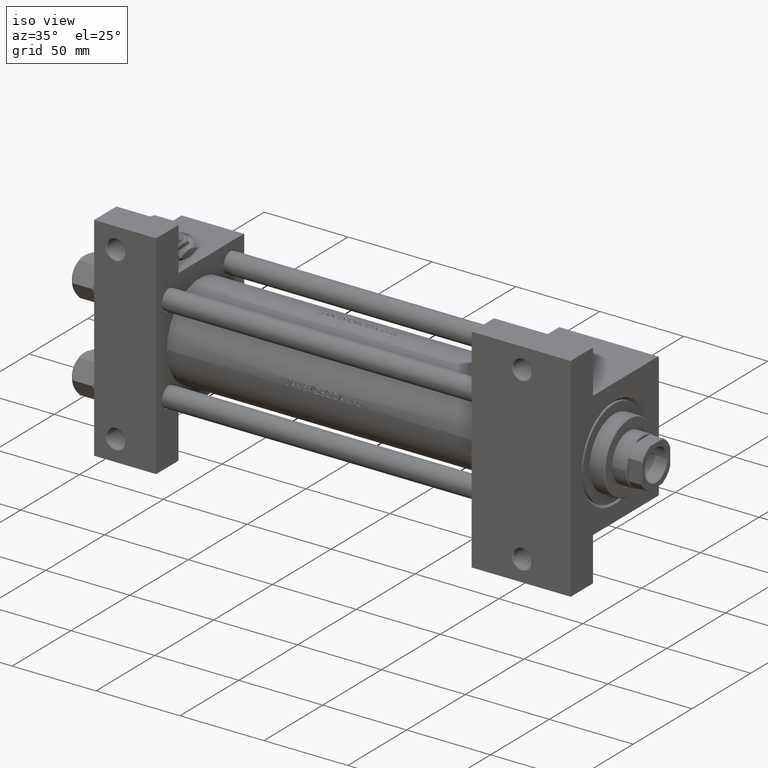
[diagram: clean part render]
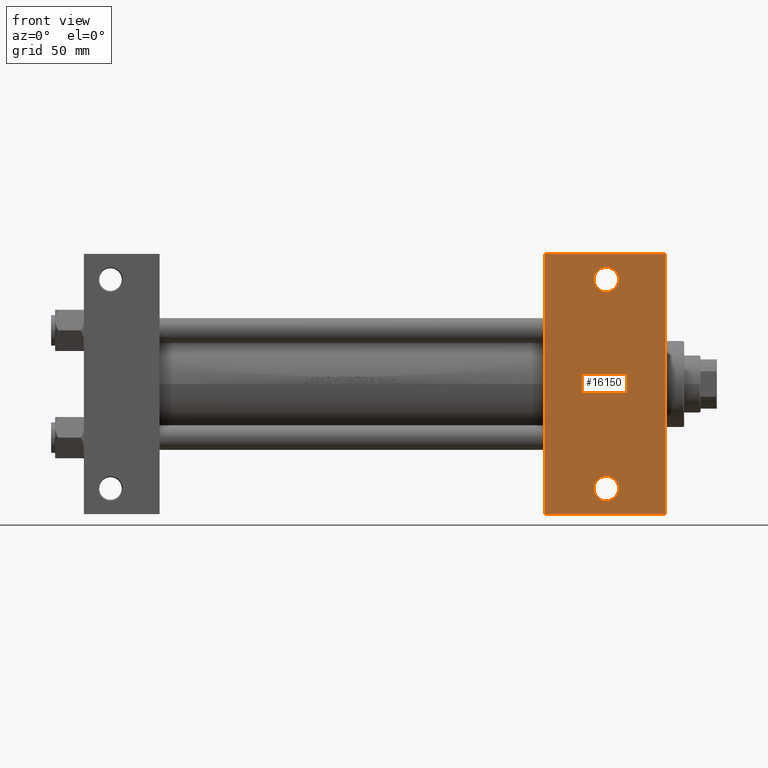
[diagram: tour spotlight — one face highlighted and labeled with its STEP entity id]
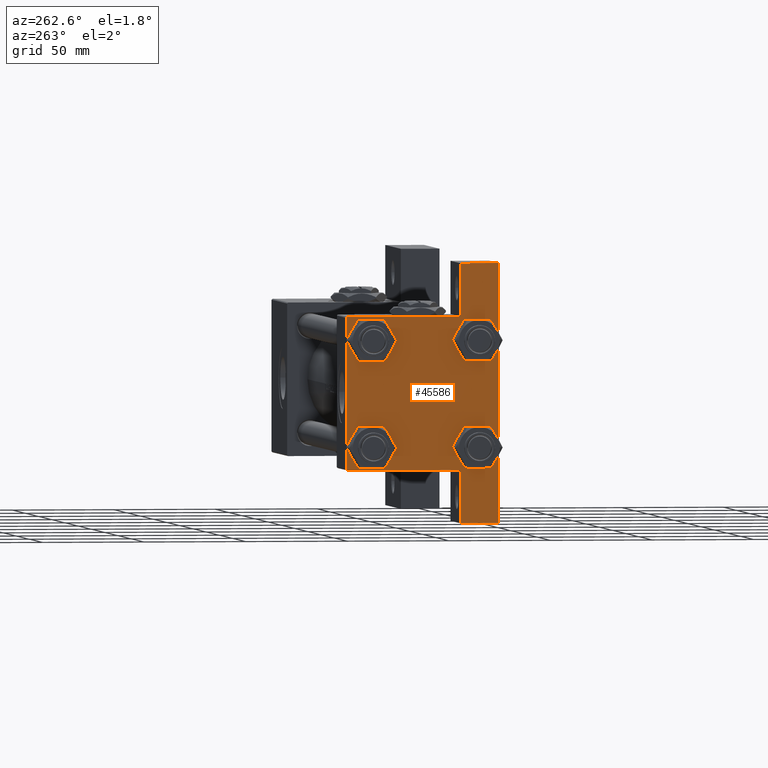
[diagram: tour spotlight — one face highlighted and labeled with its STEP entity id]
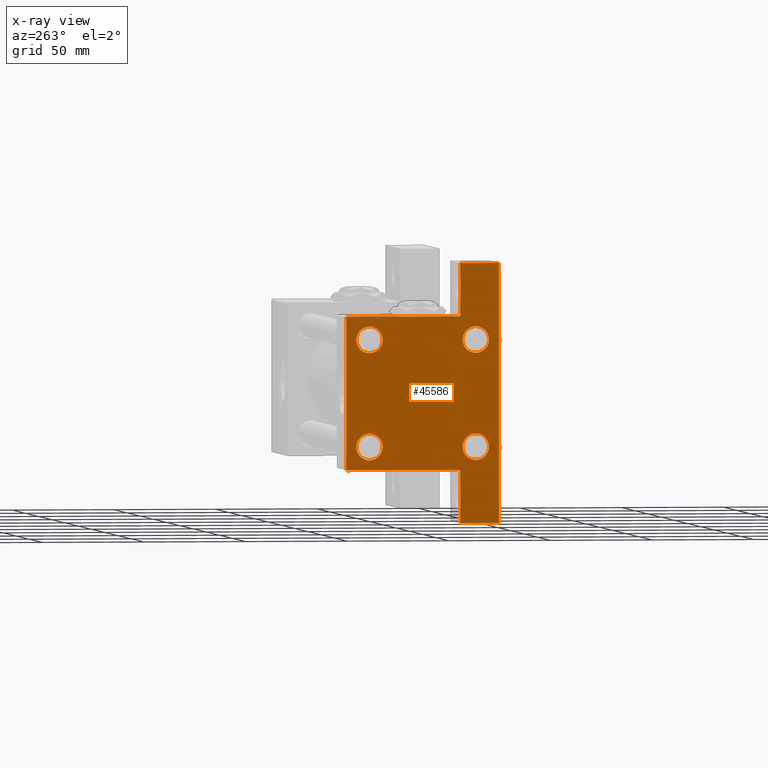
[diagram: x-ray of the same camera — body ghosted, this tour face saturated]
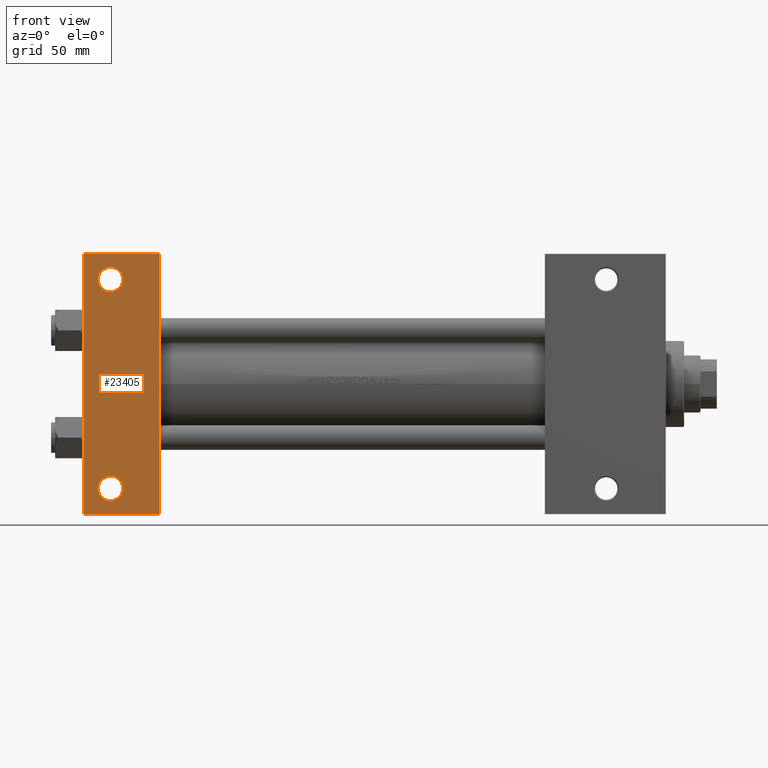
[diagram: tour spotlight — one face highlighted and labeled with its STEP entity id]
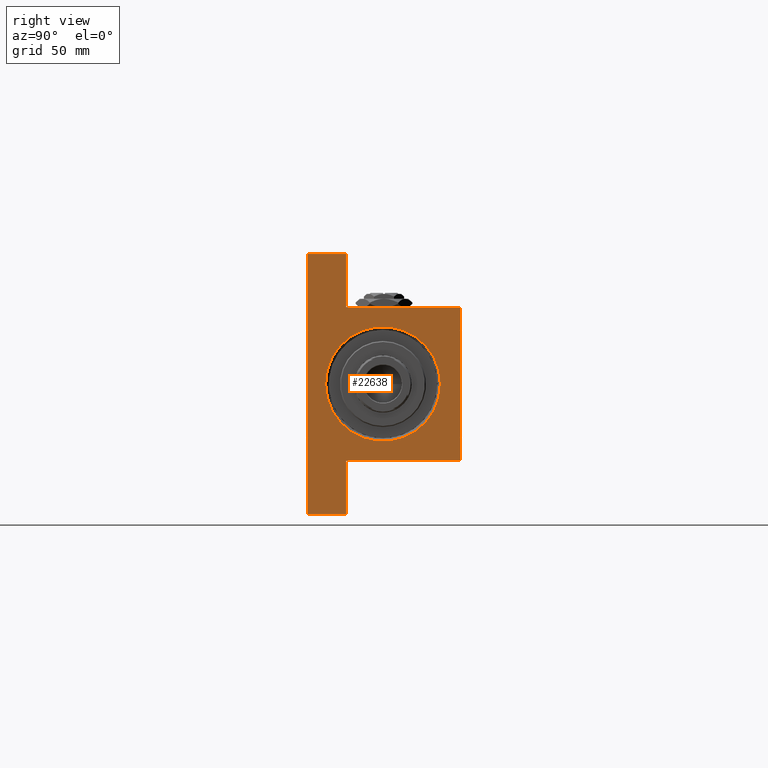
[diagram: tour spotlight — one face highlighted and labeled with its STEP entity id]
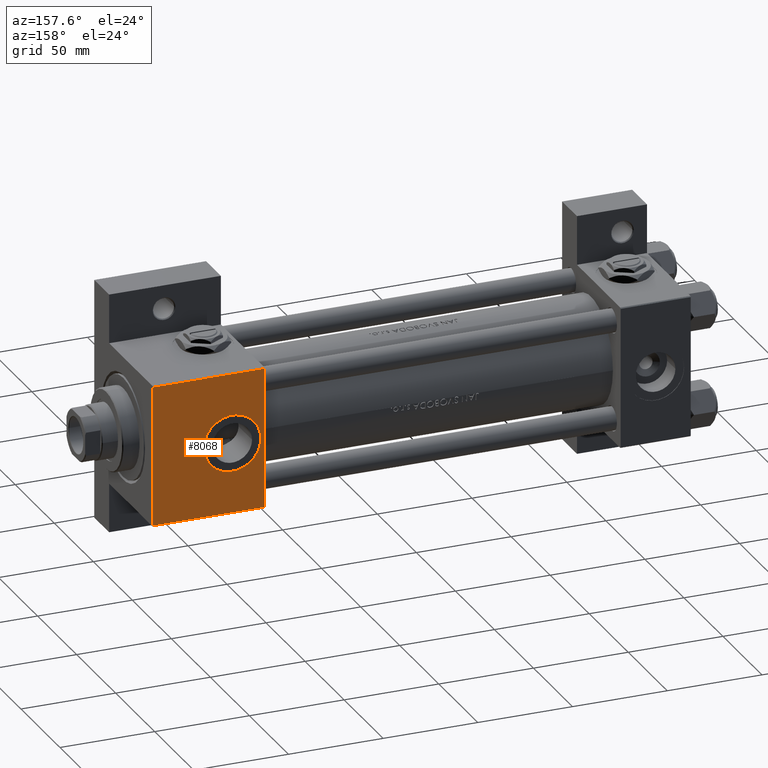
[diagram: tour spotlight — one face highlighted and labeled with its STEP entity id]
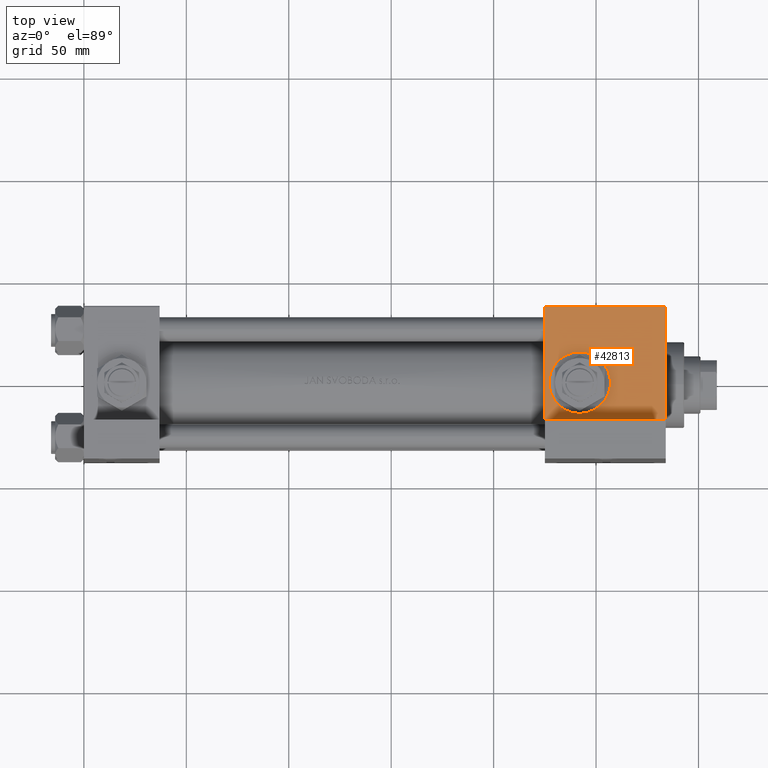
[diagram: tour spotlight — one face highlighted and labeled with its STEP entity id]
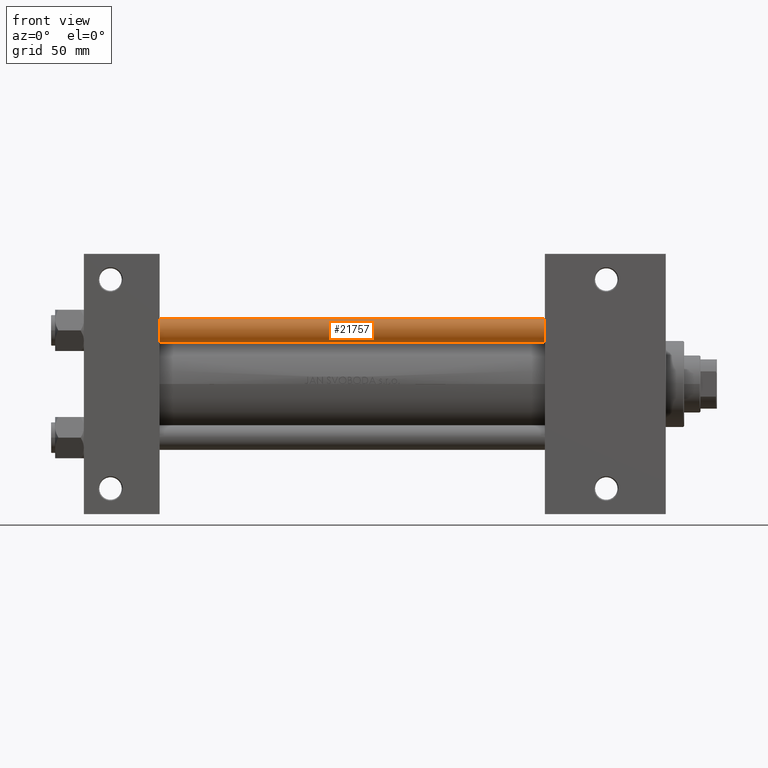
[diagram: tour spotlight — one face highlighted and labeled with its STEP entity id]
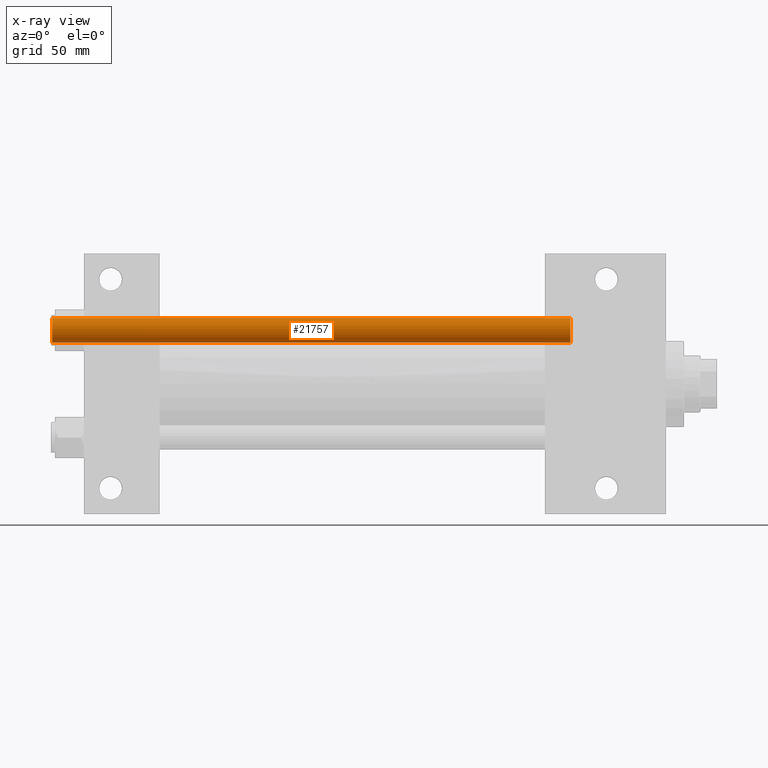
[diagram: x-ray of the same camera — body ghosted, this tour face saturated]
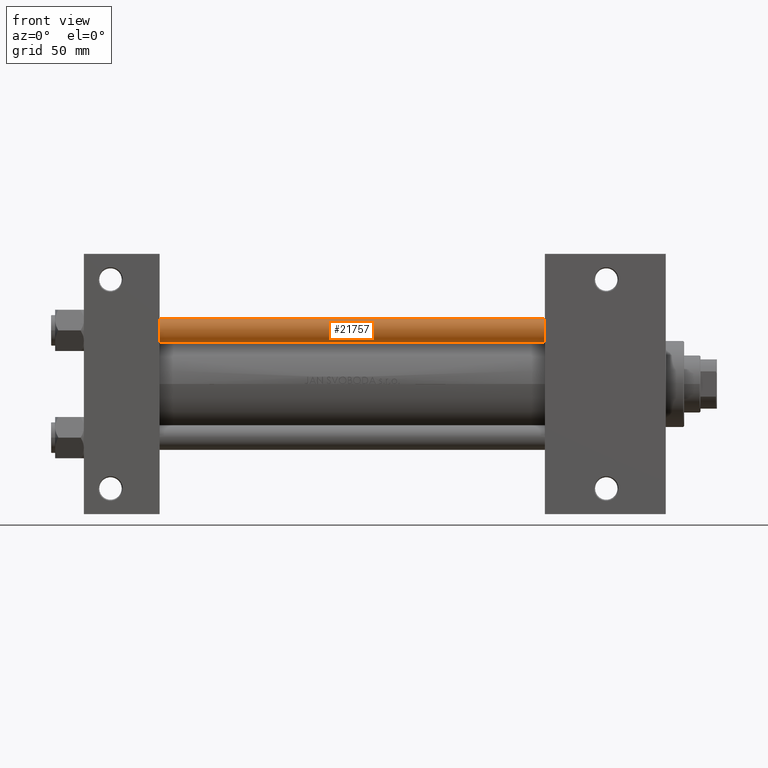
[diagram: tour spotlight — one face highlighted and labeled with its STEP entity id]
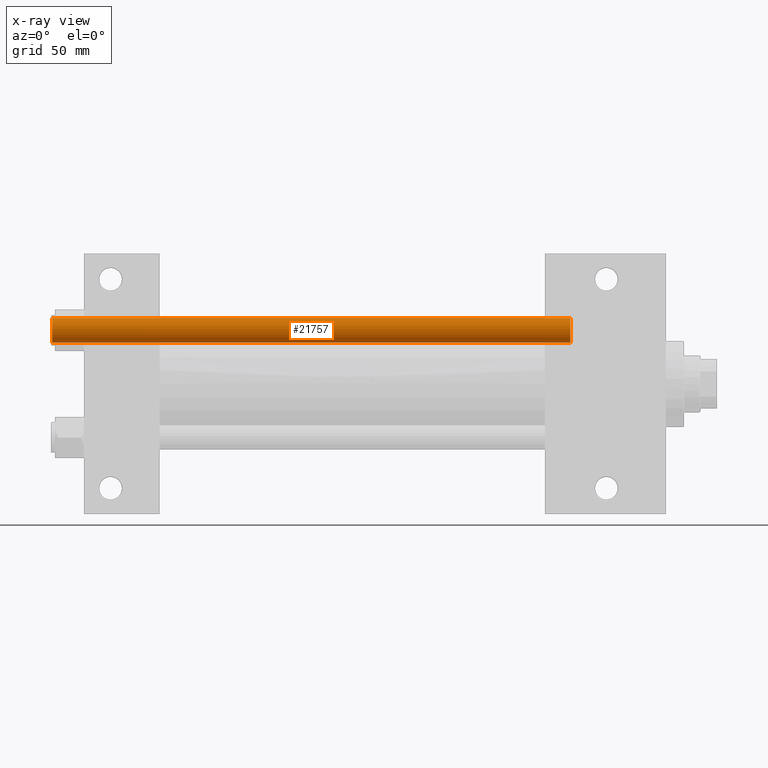
[diagram: x-ray of the same camera — body ghosted, this tour face saturated]
A machine part: a face-by-face anatomy tour. The part has 1186 B-rep faces; the first image is the clean iso view, then the 8 largest visible faces are spotlighted one at a time (largest first), each with its STEP entity span.

Face 1 — front view, entity #16150. In plain terms, the highlighted planar face has unit normal (0, -1, 0).
Definition (entity closure, byte-faithful):
#260 = FACE_BOUND ( 'NONE', #24251, .T. ) ;
#773 = DIRECTION ( 'NONE',  ( -1.000000000000000000, -0.000000000000000000, -0.000000000000000000 ) ) ;
#811 = ORIENTED_EDGE ( 'NONE', *, *, #46119, .T. ) ;
#826 = VECTOR ( 'NONE', #14559, 1000.000000000000000 ) ;
#1025 = CARTESIAN_POINT ( 'NONE',  ( 284.0000000000000568, 37.50000000000000000, -37.50000000000000000 ) ) ;
#2106 = CARTESIAN_POINT ( 'NONE',  ( 255.0000000000000000, 51.00000000000000000, -37.50000000000000000 ) ) ;
#2355 = EDGE_LOOP ( 'NONE', ( #811, #23300 ) ) ;
#4185 = AXIS2_PLACEMENT_3D ( 'NONE', #12232, #23242, #22996 ) ;
#5278 = LINE ( 'NONE', #46919, #11262 ) ;
#8152 = EDGE_CURVE ( 'NONE', #14144, #31099, #15404, .T. ) ;
#8559 = EDGE_LOOP ( 'NONE', ( #14949, #16419, #30356, #22640 ) ) ;
#10758 = AXIS2_PLACEMENT_3D ( 'NONE', #31600, #11809, #46901 ) ;
#11262 = VECTOR ( 'NONE', #773, 1000.000000000000000 ) ;
#11669 = ORIENTED_EDGE ( 'NONE', *, *, #42899, .T. ) ;
#11809 = DIRECTION ( 'NONE',  ( 0.000000000000000000, 0.000000000000000000, -1.000000000000000000 ) ) ;
#12135 = EDGE_CURVE ( 'NONE', #23596, #29862, #21028, .T. ) ;
#12232 = CARTESIAN_POINT ( 'NONE',  ( 255.0000000000000000, 51.00000000000000000, -37.50000000000000000 ) ) ;
#12333 = DIRECTION ( 'NONE',  ( 0.000000000000000000, -1.000000000000000000, 0.000000000000000000 ) ) ;
#14144 = VERTEX_POINT ( 'NONE', #40138 ) ;
#14190 = CIRCLE ( 'NONE', #34224, 5.999499999999990507 ) ;
#14559 = DIRECTION ( 'NONE',  ( 0.000000000000000000, -1.000000000000000000, 0.000000000000000000 ) ) ;
#14949 = ORIENTED_EDGE ( 'NONE', *, *, #27253, .F. ) ;
#15330 = DIRECTION ( 'NONE',  ( -1.000000000000000000, 0.000000000000000000, 0.000000000000000000 ) ) ;
#15404 = CIRCLE ( 'NONE', #4185, 5.999499999999990507 ) ;
#16150 = ADVANCED_FACE ( 'NONE', ( #260, #30861, #16318 ), #46393, .T. ) ;
#16318 = FACE_OUTER_BOUND ( 'NONE', #8559, .T. ) ;
#16419 = ORIENTED_EDGE ( 'NONE', *, *, #20729, .T. ) ;
#18321 = LINE ( 'NONE', #44895, #826 ) ;
#18857 = CARTESIAN_POINT ( 'NONE',  ( 255.0000000000000000, -51.00000000000000000, -37.50000000000000000 ) ) ;
#20729 = EDGE_CURVE ( 'NONE', #32315, #21732, #24044, .T. ) ;
#21028 = CIRCLE ( 'NONE', #49047, 5.999499999999990507 ) ;
#21650 = DIRECTION ( 'NONE',  ( -0.000000000000000000, -0.000000000000000000, 1.000000000000000000 ) ) ;
#21732 = VERTEX_POINT ( 'NONE', #38565 ) ;
#22640 = ORIENTED_EDGE ( 'NONE', *, *, #26320, .T. ) ;
#22862 = VECTOR ( 'NONE', #23548, 1000.000000000000000 ) ;
#22996 = DIRECTION ( 'NONE',  ( -1.000000000000000000, 0.000000000000000000, 0.000000000000000000 ) ) ;
#23242 = DIRECTION ( 'NONE',  ( -0.000000000000000000, -0.000000000000000000, 1.000000000000000000 ) ) ;
#23300 = ORIENTED_EDGE ( 'NONE', *, *, #12135, .T. ) ;
#23548 = DIRECTION ( 'NONE',  ( 1.000000000000000000, -4.704334850106595794E-16, 0.000000000000000000 ) ) ;
#23596 = VERTEX_POINT ( 'NONE', #25735 ) ;
#24044 = LINE ( 'NONE', #43118, #22862 ) ;
#24251 = EDGE_LOOP ( 'NONE', ( #11669, #43939 ) ) ;
#24970 = CARTESIAN_POINT ( 'NONE',  ( 225.0000000000000284, 63.50000000000000000, -37.50000000000000000 ) ) ;
#25735 = CARTESIAN_POINT ( 'NONE',  ( 260.9995000000000118, -51.00000000000000000, -37.50000000000000000 ) ) ;
#26320 = EDGE_CURVE ( 'NONE', #44734, #39421, #5278, .T. ) ;
#27253 = EDGE_CURVE ( 'NONE', #32315, #39421, #18321, .T. ) ;
#28081 = CARTESIAN_POINT ( 'NONE',  ( 249.0005000000000166, 51.00000000000000000, -37.50000000000000000 ) ) ;
#28089 = LINE ( 'NONE', #1025, #46871 ) ;
#29862 = VERTEX_POINT ( 'NONE', #38451 ) ;
#30356 = ORIENTED_EDGE ( 'NONE', *, *, #37358, .T. ) ;
#30861 = FACE_BOUND ( 'NONE', #2355, .T. ) ;
#31099 = VERTEX_POINT ( 'NONE', #28081 ) ;
#31600 = CARTESIAN_POINT ( 'NONE',  ( 284.0000000000000568, 37.50000000000000000, -37.50000000000000000 ) ) ;
#32315 = VERTEX_POINT ( 'NONE', #24970 ) ;
#34144 = DIRECTION ( 'NONE',  ( -0.000000000000000000, -0.000000000000000000, 1.000000000000000000 ) ) ;
#34224 = AXIS2_PLACEMENT_3D ( 'NONE', #35495, #46534, #43026 ) ;
#35495 = CARTESIAN_POINT ( 'NONE',  ( 255.0000000000000000, -51.00000000000000000, -37.50000000000000000 ) ) ;
#36954 = DIRECTION ( 'NONE',  ( -1.000000000000000000, 0.000000000000000000, 0.000000000000000000 ) ) ;
#37358 = EDGE_CURVE ( 'NONE', #21732, #44734, #28089, .T. ) ;
#38451 = CARTESIAN_POINT ( 'NONE',  ( 249.0005000000000166, -51.00000000000000000, -37.50000000000000000 ) ) ;
#38565 = CARTESIAN_POINT ( 'NONE',  ( 284.0000000000000568, 63.49999999999997158, -37.50000000000000000 ) ) ;
#39421 = VERTEX_POINT ( 'NONE', #42369 ) ;
#39754 = CARTESIAN_POINT ( 'NONE',  ( 284.0000000000000568, -63.50000000000002842, -37.50000000000000000 ) ) ;
#40138 = CARTESIAN_POINT ( 'NONE',  ( 260.9995000000000118, 51.00000000000000000, -37.50000000000000000 ) ) ;
#42369 = CARTESIAN_POINT ( 'NONE',  ( 225.0000000000000000, -63.50000000000002842, -37.50000000000000000 ) ) ;
#42899 = EDGE_CURVE ( 'NONE', #31099, #14144, #48512, .T. ) ;
#43026 = DIRECTION ( 'NONE',  ( -1.000000000000000000, 0.000000000000000000, 0.000000000000000000 ) ) ;
#43118 = CARTESIAN_POINT ( 'NONE',  ( 225.0000000000000284, 63.50000000000000000, -37.50000000000000000 ) ) ;
#43939 = ORIENTED_EDGE ( 'NONE', *, *, #8152, .T. ) ;
#44734 = VERTEX_POINT ( 'NONE', #39754 ) ;
#44895 = CARTESIAN_POINT ( 'NONE',  ( 225.0000000000000000, 37.50000000000000000, -37.50000000000000000 ) ) ;
#46106 = AXIS2_PLACEMENT_3D ( 'NONE', #2106, #21650, #36954 ) ;
#46119 = EDGE_CURVE ( 'NONE', #29862, #23596, #14190, .T. ) ;
#46393 = PLANE ( 'NONE',  #10758 ) ;
#46534 = DIRECTION ( 'NONE',  ( -0.000000000000000000, -0.000000000000000000, 1.000000000000000000 ) ) ;
#46871 = VECTOR ( 'NONE', #12333, 1000.000000000000000 ) ;
#46901 = DIRECTION ( 'NONE',  ( -1.000000000000000000, 0.000000000000000000, -0.000000000000000000 ) ) ;
#46919 = CARTESIAN_POINT ( 'NONE',  ( 225.0000000000000000, -63.50000000000002842, -37.50000000000000000 ) ) ;
#48512 = CIRCLE ( 'NONE', #46106, 5.999499999999990507 ) ;
#49047 = AXIS2_PLACEMENT_3D ( 'NONE', #18857, #34144, #15330 ) ;

Face 2 — auxiliary view, entity #45586. An x-ray twin of the same camera follows (body ghosted, this face saturated) — the face is partly hidden behind the body. In plain terms, the highlighted planar face has unit normal (-1, 0, -0).
Definition (entity closure, byte-faithful):
#126 = ORIENTED_EDGE ( 'NONE', *, *, #6094, .T. ) ;
#206 = ORIENTED_EDGE ( 'NONE', *, *, #33356, .F. ) ;
#265 = CARTESIAN_POINT ( 'NONE',  ( 1.595073532467135441E-14, 63.50000000000000000, -18.50000000000000355 ) ) ;
#625 = ORIENTED_EDGE ( 'NONE', *, *, #8505, .T. ) ;
#1073 = EDGE_CURVE ( 'NONE', #4809, #32708, #38278, .T. ) ;
#1345 = DIRECTION ( 'NONE',  ( 1.000000000000000000, -0.000000000000000000, 0.000000000000000000 ) ) ;
#1587 = CARTESIAN_POINT ( 'NONE',  ( 0.000000000000000000, -26.14999999999999147, -26.15000000000000924 ) ) ;
#1814 = CARTESIAN_POINT ( 'NONE',  ( 0.000000000000000000, 26.14999999999999858, 26.15000000000000213 ) ) ;
#1910 = CIRCLE ( 'NONE', #15513, 6.500000000000023093 ) ;
#3507 = CIRCLE ( 'NONE', #36352, 6.500000000000015987 ) ;
#3615 = VECTOR ( 'NONE', #25312, 1000.000000000000000 ) ;
#3877 = CIRCLE ( 'NONE', #23097, 6.500000000000023093 ) ;
#4011 = CARTESIAN_POINT ( 'NONE',  ( 0.000000000000000000, -37.50000000000000711, 36.99999999999999289 ) ) ;
#4322 = VECTOR ( 'NONE', #22590, 1000.000000000000000 ) ;
#4779 = ORIENTED_EDGE ( 'NONE', *, *, #31571, .T. ) ;
#4809 = VERTEX_POINT ( 'NONE', #25167 ) ;
#4874 = DIRECTION ( 'NONE',  ( 0.000000000000000000, 0.000000000000000000, 1.000000000000000000 ) ) ;
#5338 = DIRECTION ( 'NONE',  ( 0.000000000000000000, 0.000000000000000000, 1.000000000000000000 ) ) ;
#5511 = CARTESIAN_POINT ( 'NONE',  ( 0.000000000000000000, 0.000000000000000000, 0.000000000000000000 ) ) ;
#5856 = DIRECTION ( 'NONE',  ( 0.000000000000000000, 0.000000000000000000, 1.000000000000000000 ) ) ;
#6094 = EDGE_CURVE ( 'NONE', #37969, #30158, #40163, .T. ) ;
#6227 = EDGE_CURVE ( 'NONE', #30158, #37969, #9714, .T. ) ;
#6602 = ORIENTED_EDGE ( 'NONE', *, *, #43095, .T. ) ;
#7301 = CARTESIAN_POINT ( 'NONE',  ( 0.000000000000000000, -37.50000000000000711, 37.49999999999999289 ) ) ;
#7419 = CIRCLE ( 'NONE', #29865, 6.500000000000023093 ) ;
#7602 = CARTESIAN_POINT ( 'NONE',  ( 0.000000000000000000, 37.49999999999999289, 37.00000000000000000 ) ) ;
#7826 = VERTEX_POINT ( 'NONE', #24293 ) ;
#8404 = VECTOR ( 'NONE', #30195, 1000.000000000000000 ) ;
#8505 = EDGE_CURVE ( 'NONE', #21774, #48071, #27869, .T. ) ;
#9290 = FACE_BOUND ( 'NONE', #15173, .T. ) ;
#9381 = VERTEX_POINT ( 'NONE', #25542 ) ;
#9714 = CIRCLE ( 'NONE', #46542, 6.500000000000015987 ) ;
#9978 = VERTEX_POINT ( 'NONE', #33962 ) ;
#10955 = ORIENTED_EDGE ( 'NONE', *, *, #48347, .T. ) ;
#11446 = DIRECTION ( 'NONE',  ( 0.000000000000000000, 0.7071067811865474617, -0.7071067811865474617 ) ) ;
#11524 = DIRECTION ( 'NONE',  ( 0.000000000000000000, 0.000000000000000000, 1.000000000000000000 ) ) ;
#11923 = CARTESIAN_POINT ( 'NONE',  ( 0.000000000000000000, 26.14999999999999858, -26.15000000000000213 ) ) ;
#12036 = ORIENTED_EDGE ( 'NONE', *, *, #26045, .F. ) ;
#12338 = VECTOR ( 'NONE', #48954, 1000.000000000000000 ) ;
#12394 = DIRECTION ( 'NONE',  ( 1.000000000000000000, -0.000000000000000000, 0.000000000000000000 ) ) ;
#12705 = EDGE_LOOP ( 'NONE', ( #4779, #15921 ) ) ;
#12906 = CARTESIAN_POINT ( 'NONE',  ( 0.000000000000000000, -26.14999999999999147, 26.15000000000000924 ) ) ;
#13365 = DIRECTION ( 'NONE',  ( 0.000000000000000000, 0.000000000000000000, 1.000000000000000000 ) ) ;
#13895 = CARTESIAN_POINT ( 'NONE',  ( 0.000000000000000000, 26.14999999999999858, -19.64999999999998792 ) ) ;
#14036 = ORIENTED_EDGE ( 'NONE', *, *, #41556, .F. ) ;
#14486 = DIRECTION ( 'NONE',  ( 0.000000000000000000, 0.000000000000000000, 1.000000000000000000 ) ) ;
#14623 = VECTOR ( 'NONE', #15617, 1000.000000000000000 ) ;
#14709 = VERTEX_POINT ( 'NONE', #13895 ) ;
#14730 = CARTESIAN_POINT ( 'NONE',  ( 0.000000000000000000, 26.14999999999999858, 26.15000000000000213 ) ) ;
#15173 = EDGE_LOOP ( 'NONE', ( #37347, #30883 ) ) ;
#15219 = EDGE_LOOP ( 'NONE', ( #30174, #34174, #206, #31535, #6602, #14036, #27435, #625, #25444, #12036 ) ) ;
#15280 = DIRECTION ( 'NONE',  ( 1.000000000000000000, -0.000000000000000000, 0.000000000000000000 ) ) ;
#15513 = AXIS2_PLACEMENT_3D ( 'NONE', #1814, #17129, #13365 ) ;
#15617 = DIRECTION ( 'NONE',  ( 0.000000000000000000, -1.000000000000000000, -9.251858538542972814E-17 ) ) ;
#15858 = CIRCLE ( 'NONE', #27031, 6.500000000000023093 ) ;
#15921 = ORIENTED_EDGE ( 'NONE', *, *, #48744, .T. ) ;
#16073 = EDGE_CURVE ( 'NONE', #44787, #16121, #22343, .T. ) ;
#16121 = VERTEX_POINT ( 'NONE', #19326 ) ;
#16165 = ORIENTED_EDGE ( 'NONE', *, *, #33578, .T. ) ;
#16823 = FACE_BOUND ( 'NONE', #12705, .T. ) ;
#17129 = DIRECTION ( 'NONE',  ( 1.000000000000000000, -0.000000000000000000, 0.000000000000000000 ) ) ;
#17274 = CARTESIAN_POINT ( 'NONE',  ( 0.000000000000000000, -37.00000000000000711, 37.49999999999999289 ) ) ;
#17495 = CARTESIAN_POINT ( 'NONE',  ( 0.000000000000000000, 37.49999999999999289, 37.50000000000000000 ) ) ;
#18170 = LINE ( 'NONE', #26162, #8404 ) ;
#18347 = EDGE_CURVE ( 'NONE', #45479, #21774, #18170, .T. ) ;
#18369 = CARTESIAN_POINT ( 'NONE',  ( 3.977209754999744250E-16, -63.49999999999998579, -18.50000000000000355 ) ) ;
#19085 = CARTESIAN_POINT ( 'NONE',  ( 0.000000000000000000, -26.14999999999999147, -19.64999999999999503 ) ) ;
#19308 = VERTEX_POINT ( 'NONE', #43769 ) ;
#19326 = CARTESIAN_POINT ( 'NONE',  ( -7.145701223179004046E-16, -37.50000000000000711, -18.50000000000000355 ) ) ;
#20073 = FACE_BOUND ( 'NONE', #32248, .T. ) ;
#21383 = AXIS2_PLACEMENT_3D ( 'NONE', #5511, #28077, #47401 ) ;
#21590 = DIRECTION ( 'NONE',  ( 0.000000000000000000, 0.000000000000000000, -1.000000000000000000 ) ) ;
#21774 = VERTEX_POINT ( 'NONE', #23248 ) ;
#21878 = VECTOR ( 'NONE', #29503, 1000.000000000000000 ) ;
#22063 = LINE ( 'NONE', #40639, #3615 ) ;
#22136 = EDGE_CURVE ( 'NONE', #9381, #14709, #32582, .T. ) ;
#22190 = CARTESIAN_POINT ( 'NONE',  ( 0.000000000000000000, -26.14999999999999147, -26.15000000000000924 ) ) ;
#22343 = LINE ( 'NONE', #7301, #4322 ) ;
#22590 = DIRECTION ( 'NONE',  ( 0.000000000000000000, 9.251858538542971581E-17, -1.000000000000000000 ) ) ;
#23097 = AXIS2_PLACEMENT_3D ( 'NONE', #46981, #12394, #5338 ) ;
#23248 = CARTESIAN_POINT ( 'NONE',  ( 1.595073532467135441E-14, 63.50000000000000000, -37.50000000000002132 ) ) ;
#24293 = CARTESIAN_POINT ( 'NONE',  ( 0.000000000000000000, 26.14999999999999858, 32.65000000000002700 ) ) ;
#24518 = VERTEX_POINT ( 'NONE', #37315 ) ;
#24778 = VECTOR ( 'NONE', #11446, 1000.000000000000114 ) ;
#25130 = DIRECTION ( 'NONE',  ( 4.278042683914906889E-17, -1.000000000000000000, 0.000000000000000000 ) ) ;
#25167 = CARTESIAN_POINT ( 'NONE',  ( 0.000000000000000000, 36.99999999999999289, 37.50000000000000000 ) ) ;
#25304 = ORIENTED_EDGE ( 'NONE', *, *, #6227, .T. ) ;
#25312 = DIRECTION ( 'NONE',  ( -2.877097866686192789E-16, -1.000000000000000000, 0.000000000000000000 ) ) ;
#25444 = ORIENTED_EDGE ( 'NONE', *, *, #34289, .F. ) ;
#25542 = CARTESIAN_POINT ( 'NONE',  ( 0.000000000000000000, 26.14999999999999858, -32.65000000000001990 ) ) ;
#26006 = EDGE_CURVE ( 'NONE', #44787, #41716, #39209, .T. ) ;
#26045 = EDGE_CURVE ( 'NONE', #16121, #19308, #27902, .T. ) ;
#26156 = AXIS2_PLACEMENT_3D ( 'NONE', #11923, #31958, #4874 ) ;
#26162 = CARTESIAN_POINT ( 'NONE',  ( 1.595073532467135441E-14, 63.50000000000001421, 26.72167621838005047 ) ) ;
#26237 = DIRECTION ( 'NONE',  ( 1.000000000000000000, -0.000000000000000000, 0.000000000000000000 ) ) ;
#27031 = AXIS2_PLACEMENT_3D ( 'NONE', #14730, #26237, #14486 ) ;
#27435 = ORIENTED_EDGE ( 'NONE', *, *, #18347, .T. ) ;
#27575 = PLANE ( 'NONE',  #21383 ) ;
#27869 = LINE ( 'NONE', #43186, #14623 ) ;
#27902 = LINE ( 'NONE', #18369, #44044 ) ;
#28077 = DIRECTION ( 'NONE',  ( -1.000000000000000000, 0.000000000000000000, -0.000000000000000000 ) ) ;
#29173 = DIRECTION ( 'NONE',  ( 1.000000000000000000, -0.000000000000000000, 0.000000000000000000 ) ) ;
#29313 = CARTESIAN_POINT ( 'NONE',  ( 0.000000000000000000, 37.49999999999999289, -18.49999999999999645 ) ) ;
#29503 = DIRECTION ( 'NONE',  ( 0.000000000000000000, -1.000000000000000000, -9.251858538542971581E-17 ) ) ;
#29641 = CARTESIAN_POINT ( 'NONE',  ( 3.977209754999747208E-16, -63.49999999999998579, 26.72167621838007889 ) ) ;
#29865 = AXIS2_PLACEMENT_3D ( 'NONE', #12906, #29173, #5856 ) ;
#30158 = VERTEX_POINT ( 'NONE', #19085 ) ;
#30174 = ORIENTED_EDGE ( 'NONE', *, *, #16073, .F. ) ;
#30195 = DIRECTION ( 'NONE',  ( 0.000000000000000000, -1.734723475976806848E-16, -1.000000000000000000 ) ) ;
#30883 = ORIENTED_EDGE ( 'NONE', *, *, #22136, .T. ) ;
#31224 = VECTOR ( 'NONE', #47226, 1000.000000000000114 ) ;
#31535 = ORIENTED_EDGE ( 'NONE', *, *, #1073, .T. ) ;
#31571 = EDGE_CURVE ( 'NONE', #9978, #38822, #7419, .T. ) ;
#31958 = DIRECTION ( 'NONE',  ( 1.000000000000000000, -0.000000000000000000, 0.000000000000000000 ) ) ;
#32248 = EDGE_LOOP ( 'NONE', ( #16165, #10955 ) ) ;
#32582 = CIRCLE ( 'NONE', #26156, 6.500000000000015987 ) ;
#32708 = VERTEX_POINT ( 'NONE', #7602 ) ;
#33074 = VERTEX_POINT ( 'NONE', #29313 ) ;
#33356 = EDGE_CURVE ( 'NONE', #4809, #41716, #36788, .T. ) ;
#33483 = DIRECTION ( 'NONE',  ( 0.000000000000000000, 0.000000000000000000, 1.000000000000000000 ) ) ;
#33552 = CARTESIAN_POINT ( 'NONE',  ( 0.000000000000000000, -26.14999999999999147, 19.64999999999999147 ) ) ;
#33578 = EDGE_CURVE ( 'NONE', #7826, #24518, #1910, .T. ) ;
#33962 = CARTESIAN_POINT ( 'NONE',  ( 0.000000000000000000, -26.14999999999999147, 32.65000000000003411 ) ) ;
#34174 = ORIENTED_EDGE ( 'NONE', *, *, #26006, .T. ) ;
#34222 = DIRECTION ( 'NONE',  ( 1.000000000000000000, -0.000000000000000000, 0.000000000000000000 ) ) ;
#34289 = EDGE_CURVE ( 'NONE', #19308, #48071, #37923, .T. ) ;
#34637 = EDGE_CURVE ( 'NONE', #14709, #9381, #3507, .T. ) ;
#35348 = EDGE_LOOP ( 'NONE', ( #25304, #126 ) ) ;
#35688 = VECTOR ( 'NONE', #21590, 1000.000000000000000 ) ;
#36352 = AXIS2_PLACEMENT_3D ( 'NONE', #49625, #15280, #11524 ) ;
#36788 = LINE ( 'NONE', #17495, #21878 ) ;
#37145 = CARTESIAN_POINT ( 'NONE',  ( 0.000000000000000000, 37.49999999999999289, 37.50000000000000000 ) ) ;
#37300 = CARTESIAN_POINT ( 'NONE',  ( 0.000000000000000000, 37.24999999999999289, 37.24999999999999289 ) ) ;
#37315 = CARTESIAN_POINT ( 'NONE',  ( 0.000000000000000000, 26.14999999999999858, 19.64999999999998437 ) ) ;
#37347 = ORIENTED_EDGE ( 'NONE', *, *, #34637, .T. ) ;
#37923 = LINE ( 'NONE', #29641, #12338 ) ;
#37969 = VERTEX_POINT ( 'NONE', #49513 ) ;
#38278 = LINE ( 'NONE', #37300, #24778 ) ;
#38822 = VERTEX_POINT ( 'NONE', #33552 ) ;
#38967 = CARTESIAN_POINT ( 'NONE',  ( -0.000000000000000000, -37.25000000000000000, 37.25000000000000000 ) ) ;
#39091 = CARTESIAN_POINT ( 'NONE',  ( 3.977209754999747208E-16, -63.50000000000000000, -37.49999999999999289 ) ) ;
#39209 = LINE ( 'NONE', #38967, #31224 ) ;
#39358 = AXIS2_PLACEMENT_3D ( 'NONE', #22190, #34222, #33483 ) ;
#39727 = DIRECTION ( 'NONE',  ( 0.000000000000000000, 0.000000000000000000, 1.000000000000000000 ) ) ;
#40163 = CIRCLE ( 'NONE', #39358, 6.500000000000015987 ) ;
#40639 = CARTESIAN_POINT ( 'NONE',  ( 1.595073532467135757E-14, 63.50000000000001421, -18.50000000000000355 ) ) ;
#41556 = EDGE_CURVE ( 'NONE', #45479, #33074, #22063, .T. ) ;
#41716 = VERTEX_POINT ( 'NONE', #17274 ) ;
#42898 = FACE_OUTER_BOUND ( 'NONE', #15219, .T. ) ;
#43095 = EDGE_CURVE ( 'NONE', #32708, #33074, #44172, .T. ) ;
#43186 = CARTESIAN_POINT ( 'NONE',  ( 0.000000000000000000, 37.49999999999999289, -37.50000000000000000 ) ) ;
#43648 = FACE_BOUND ( 'NONE', #35348, .T. ) ;
#43769 = CARTESIAN_POINT ( 'NONE',  ( 3.977209754999747208E-16, -63.50000000000000000, -18.50000000000000355 ) ) ;
#44044 = VECTOR ( 'NONE', #25130, 1000.000000000000000 ) ;
#44172 = LINE ( 'NONE', #37145, #35688 ) ;
#44787 = VERTEX_POINT ( 'NONE', #4011 ) ;
#45479 = VERTEX_POINT ( 'NONE', #265 ) ;
#45586 = ADVANCED_FACE ( 'NONE', ( #16823, #43648, #9290, #20073, #42898 ), #27575, .T. ) ;
#46542 = AXIS2_PLACEMENT_3D ( 'NONE', #1587, #1345, #39727 ) ;
#46981 = CARTESIAN_POINT ( 'NONE',  ( 0.000000000000000000, -26.14999999999999147, 26.15000000000000924 ) ) ;
#47226 = DIRECTION ( 'NONE',  ( -0.000000000000000000, 0.7071067811865474617, 0.7071067811865474617 ) ) ;
#47401 = DIRECTION ( 'NONE',  ( -0.000000000000000000, 0.000000000000000000, 1.000000000000000000 ) ) ;
#48071 = VERTEX_POINT ( 'NONE', #39091 ) ;
#48347 = EDGE_CURVE ( 'NONE', #24518, #7826, #15858, .T. ) ;
#48744 = EDGE_CURVE ( 'NONE', #38822, #9978, #3877, .T. ) ;
#48954 = DIRECTION ( 'NONE',  ( 0.000000000000000000, -1.734723475976806848E-16, -1.000000000000000000 ) ) ;
#49513 = CARTESIAN_POINT ( 'NONE',  ( 0.000000000000000000, -26.14999999999999147, -32.65000000000002700 ) ) ;
#49625 = CARTESIAN_POINT ( 'NONE',  ( 0.000000000000000000, 26.14999999999999858, -26.15000000000000213 ) ) ;

Face 3 — front view, entity #23405. In plain terms, the highlighted planar face has unit normal (0, -1, -0).
Definition (entity closure, byte-faithful):
#202 = DIRECTION ( 'NONE',  ( -1.000000000000000000, -0.000000000000000000, -0.000000000000000000 ) ) ;
#337 = EDGE_CURVE ( 'NONE', #21774, #24662, #5702, .T. ) ;
#408 = CARTESIAN_POINT ( 'NONE',  ( 37.00000000000000000, 37.49999999999999289, -37.50000000000000000 ) ) ;
#1661 = ORIENTED_EDGE ( 'NONE', *, *, #45396, .T. ) ;
#1895 = CARTESIAN_POINT ( 'NONE',  ( 37.00000000000001421, 63.50000000000000000, -37.50000000000002132 ) ) ;
#2156 = CIRCLE ( 'NONE', #30967, 5.999499999999907907 ) ;
#3731 = FACE_OUTER_BOUND ( 'NONE', #42993, .T. ) ;
#3812 = VECTOR ( 'NONE', #15717, 1000.000000000000000 ) ;
#3936 = EDGE_CURVE ( 'NONE', #26827, #41851, #28059, .T. ) ;
#4707 = DIRECTION ( 'NONE',  ( 0.000000000000000000, 9.251858538542972814E-17, -1.000000000000000000 ) ) ;
#4979 = CIRCLE ( 'NONE', #46619, 5.999499999999907907 ) ;
#5354 = AXIS2_PLACEMENT_3D ( 'NONE', #23772, #4707, #30567 ) ;
#5702 = LINE ( 'NONE', #21010, #45583 ) ;
#6588 = AXIS2_PLACEMENT_3D ( 'NONE', #27833, #23577, #19591 ) ;
#7745 = FACE_BOUND ( 'NONE', #12058, .T. ) ;
#8259 = EDGE_CURVE ( 'NONE', #17468, #15732, #4979, .T. ) ;
#8505 = EDGE_CURVE ( 'NONE', #21774, #48071, #27869, .T. ) ;
#8830 = DIRECTION ( 'NONE',  ( 0.000000000000000000, 1.000000000000000000, 0.000000000000000000 ) ) ;
#10077 = CARTESIAN_POINT ( 'NONE',  ( 18.99949999999990524, -51.00000000000002842, -37.50000000000000711 ) ) ;
#11709 = LINE ( 'NONE', #408, #3812 ) ;
#11775 = EDGE_CURVE ( 'NONE', #23182, #48071, #16514, .T. ) ;
#12058 = EDGE_LOOP ( 'NONE', ( #48256, #48307 ) ) ;
#12261 = PLANE ( 'NONE',  #5354 ) ;
#13000 = DIRECTION ( 'NONE',  ( 1.000000000000000000, 0.000000000000000000, 0.000000000000000000 ) ) ;
#13648 = CARTESIAN_POINT ( 'NONE',  ( 12.99999999999999822, -51.00000000000002842, -37.50000000000000711 ) ) ;
#14623 = VECTOR ( 'NONE', #15617, 1000.000000000000000 ) ;
#14901 = ORIENTED_EDGE ( 'NONE', *, *, #3936, .T. ) ;
#14936 = ORIENTED_EDGE ( 'NONE', *, *, #11775, .T. ) ;
#15617 = DIRECTION ( 'NONE',  ( 0.000000000000000000, -1.000000000000000000, -9.251858538542972814E-17 ) ) ;
#15717 = DIRECTION ( 'NONE',  ( 0.000000000000000000, -1.000000000000000000, -9.251858538542972814E-17 ) ) ;
#15732 = VERTEX_POINT ( 'NONE', #37033 ) ;
#16369 = CARTESIAN_POINT ( 'NONE',  ( 12.99999999999999822, 50.99999999999997868, -37.50000000000000000 ) ) ;
#16514 = LINE ( 'NONE', #35307, #30721 ) ;
#17174 = DIRECTION ( 'NONE',  ( 0.000000000000000000, 1.000000000000000000, 0.000000000000000000 ) ) ;
#17468 = VERTEX_POINT ( 'NONE', #10077 ) ;
#17902 = DIRECTION ( 'NONE',  ( -0.000000000000000000, -9.251858538542972814E-17, 1.000000000000000000 ) ) ;
#19268 = AXIS2_PLACEMENT_3D ( 'NONE', #16369, #20125, #8830 ) ;
#19591 = DIRECTION ( 'NONE',  ( 0.000000000000000000, 1.000000000000000000, 0.000000000000000000 ) ) ;
#20125 = DIRECTION ( 'NONE',  ( -0.000000000000000000, -9.251858538542972814E-17, 1.000000000000000000 ) ) ;
#21010 = CARTESIAN_POINT ( 'NONE',  ( 1.595073532467135441E-14, 63.50000000000000000, -37.50000000000002132 ) ) ;
#21774 = VERTEX_POINT ( 'NONE', #23248 ) ;
#22938 = EDGE_LOOP ( 'NONE', ( #14901, #1661 ) ) ;
#23182 = VERTEX_POINT ( 'NONE', #40392 ) ;
#23218 = ORIENTED_EDGE ( 'NONE', *, *, #337, .T. ) ;
#23248 = CARTESIAN_POINT ( 'NONE',  ( 1.595073532467135441E-14, 63.50000000000000000, -37.50000000000002132 ) ) ;
#23405 = ADVANCED_FACE ( 'NONE', ( #38104, #7745, #3731 ), #12261, .T. ) ;
#23577 = DIRECTION ( 'NONE',  ( -0.000000000000000000, -9.251858538542972814E-17, 1.000000000000000000 ) ) ;
#23772 = CARTESIAN_POINT ( 'NONE',  ( 37.00000000000000000, 37.49999999999999289, -37.50000000000000000 ) ) ;
#24662 = VERTEX_POINT ( 'NONE', #1895 ) ;
#26197 = ORIENTED_EDGE ( 'NONE', *, *, #8505, .F. ) ;
#26827 = VERTEX_POINT ( 'NONE', #46556 ) ;
#27833 = CARTESIAN_POINT ( 'NONE',  ( 12.99999999999999822, -51.00000000000002842, -37.50000000000000711 ) ) ;
#27869 = LINE ( 'NONE', #43186, #14623 ) ;
#28059 = CIRCLE ( 'NONE', #19268, 5.999499999999907907 ) ;
#28201 = CIRCLE ( 'NONE', #6588, 5.999499999999907907 ) ;
#28445 = DIRECTION ( 'NONE',  ( 0.000000000000000000, 1.000000000000000000, 0.000000000000000000 ) ) ;
#30567 = DIRECTION ( 'NONE',  ( 0.000000000000000000, 1.000000000000000000, 9.251858538542972814E-17 ) ) ;
#30721 = VECTOR ( 'NONE', #202, 1000.000000000000000 ) ;
#30967 = AXIS2_PLACEMENT_3D ( 'NONE', #48008, #40005, #28445 ) ;
#31080 = EDGE_CURVE ( 'NONE', #15732, #17468, #28201, .T. ) ;
#34284 = ORIENTED_EDGE ( 'NONE', *, *, #47057, .T. ) ;
#35307 = CARTESIAN_POINT ( 'NONE',  ( 3.977209754999747208E-16, -63.50000000000000000, -37.49999999999999289 ) ) ;
#37033 = CARTESIAN_POINT ( 'NONE',  ( 7.000500000000090317, -51.00000000000002842, -37.50000000000000711 ) ) ;
#38104 = FACE_BOUND ( 'NONE', #22938, .T. ) ;
#39091 = CARTESIAN_POINT ( 'NONE',  ( 3.977209754999747208E-16, -63.50000000000000000, -37.49999999999999289 ) ) ;
#40005 = DIRECTION ( 'NONE',  ( -0.000000000000000000, -9.251858538542972814E-17, 1.000000000000000000 ) ) ;
#40392 = CARTESIAN_POINT ( 'NONE',  ( 37.00000000000000000, -63.50000000000000000, -37.49999999999999289 ) ) ;
#41851 = VERTEX_POINT ( 'NONE', #49075 ) ;
#42993 = EDGE_LOOP ( 'NONE', ( #26197, #23218, #34284, #14936 ) ) ;
#43186 = CARTESIAN_POINT ( 'NONE',  ( 0.000000000000000000, 37.49999999999999289, -37.50000000000000000 ) ) ;
#45396 = EDGE_CURVE ( 'NONE', #41851, #26827, #2156, .T. ) ;
#45583 = VECTOR ( 'NONE', #13000, 1000.000000000000000 ) ;
#46556 = CARTESIAN_POINT ( 'NONE',  ( 7.000500000000090317, 50.99999999999997868, -37.50000000000000000 ) ) ;
#46619 = AXIS2_PLACEMENT_3D ( 'NONE', #13648, #17902, #17174 ) ;
#47057 = EDGE_CURVE ( 'NONE', #24662, #23182, #11709, .T. ) ;
#48008 = CARTESIAN_POINT ( 'NONE',  ( 12.99999999999999822, 50.99999999999997868, -37.50000000000000000 ) ) ;
#48071 = VERTEX_POINT ( 'NONE', #39091 ) ;
#48256 = ORIENTED_EDGE ( 'NONE', *, *, #31080, .T. ) ;
#48307 = ORIENTED_EDGE ( 'NONE', *, *, #8259, .T. ) ;
#49075 = CARTESIAN_POINT ( 'NONE',  ( 18.99949999999990524, 50.99999999999997868, -37.50000000000000000 ) ) ;

Face 4 — right view, entity #22638. In plain terms, the highlighted planar face has unit normal (-1, 0, 0).
Definition (entity closure, byte-faithful):
#484 = CARTESIAN_POINT ( 'NONE',  ( 284.0000000000000568, 63.49999999999997158, -18.50000000000000000 ) ) ;
#856 = EDGE_LOOP ( 'NONE', ( #19926, #27990, #25794, #41426, #10499, #46083, #25528, #9154, #38988, #33251 ) ) ;
#1025 = CARTESIAN_POINT ( 'NONE',  ( 284.0000000000000568, 37.50000000000000000, -37.50000000000000000 ) ) ;
#1412 = CARTESIAN_POINT ( 'NONE',  ( 284.0000000000000568, -37.50000000000000000, 37.49999999999997868 ) ) ;
#1497 = VECTOR ( 'NONE', #32922, 1000.000000000000000 ) ;
#1618 = VERTEX_POINT ( 'NONE', #44326 ) ;
#1876 = FACE_OUTER_BOUND ( 'NONE', #856, .T. ) ;
#2514 = DIRECTION ( 'NONE',  ( 0.000000000000000000, 0.000000000000000000, -1.000000000000000000 ) ) ;
#2853 = VERTEX_POINT ( 'NONE', #46488 ) ;
#2905 = DIRECTION ( 'NONE',  ( 0.000000000000000000, 0.000000000000000000, 1.000000000000000000 ) ) ;
#3853 = DIRECTION ( 'NONE',  ( 0.000000000000000000, -1.000000000000000000, -1.850371707708594316E-16 ) ) ;
#4339 = CARTESIAN_POINT ( 'NONE',  ( 284.0000000000000568, 63.49999999999997158, -18.50000000000000000 ) ) ;
#4714 = DIRECTION ( 'NONE',  ( -0.000000000000000000, -1.000000000000000000, -0.000000000000000000 ) ) ;
#5083 = LINE ( 'NONE', #4339, #10206 ) ;
#5781 = CARTESIAN_POINT ( 'NONE',  ( 284.0000000000000568, 36.99999999999994316, 37.49999999999999289 ) ) ;
#6150 = AXIS2_PLACEMENT_3D ( 'NONE', #32467, #30437, #25660 ) ;
#6512 = LINE ( 'NONE', #40642, #40370 ) ;
#6834 = EDGE_CURVE ( 'NONE', #2853, #30770, #35769, .T. ) ;
#9154 = ORIENTED_EDGE ( 'NONE', *, *, #37358, .F. ) ;
#9552 = VERTEX_POINT ( 'NONE', #22478 ) ;
#9799 = CARTESIAN_POINT ( 'NONE',  ( 284.0000000000000568, -37.50000000000000000, 36.99999999999995026 ) ) ;
#10206 = VECTOR ( 'NONE', #39451, 1000.000000000000000 ) ;
#10499 = ORIENTED_EDGE ( 'NONE', *, *, #6834, .T. ) ;
#11099 = EDGE_LOOP ( 'NONE', ( #42334, #25406 ) ) ;
#12019 = LINE ( 'NONE', #15776, #27864 ) ;
#12250 = CARTESIAN_POINT ( 'NONE',  ( 284.0000000000000568, -63.50000000000002842, -18.50000000000000000 ) ) ;
#12333 = DIRECTION ( 'NONE',  ( 0.000000000000000000, -1.000000000000000000, 0.000000000000000000 ) ) ;
#12536 = CARTESIAN_POINT ( 'NONE',  ( 284.0000000000000568, 3.429011037612595587E-15, 27.50000000000005329 ) ) ;
#13152 = VECTOR ( 'NONE', #42214, 1000.000000000000114 ) ;
#14589 = AXIS2_PLACEMENT_3D ( 'NONE', #18038, #48126, #48622 ) ;
#14684 = DIRECTION ( 'NONE',  ( -1.000000000000000000, -0.000000000000000000, 0.000000000000000000 ) ) ;
#15369 = VECTOR ( 'NONE', #38149, 1000.000000000000000 ) ;
#15380 = LINE ( 'NONE', #45964, #13152 ) ;
#15776 = CARTESIAN_POINT ( 'NONE',  ( 284.0000000000000568, -63.50000000000002842, -18.50000000000000000 ) ) ;
#15889 = EDGE_CURVE ( 'NONE', #30710, #26462, #15380, .T. ) ;
#16727 = DIRECTION ( 'NONE',  ( 0.000000000000000000, -9.251858538542972814E-17, -1.000000000000000000 ) ) ;
#17192 = PLANE ( 'NONE',  #6150 ) ;
#18038 = CARTESIAN_POINT ( 'NONE',  ( 284.0000000000000568, 0.000000000000000000, -0.5000000000000004441 ) ) ;
#18929 = LINE ( 'NONE', #23400, #48737 ) ;
#19375 = CIRCLE ( 'NONE', #14589, 28.00000000000005329 ) ;
#19693 = VERTEX_POINT ( 'NONE', #12536 ) ;
#19926 = ORIENTED_EDGE ( 'NONE', *, *, #48786, .F. ) ;
#20271 = EDGE_CURVE ( 'NONE', #19693, #1618, #40505, .T. ) ;
#21732 = VERTEX_POINT ( 'NONE', #38565 ) ;
#22478 = CARTESIAN_POINT ( 'NONE',  ( 284.0000000000000568, -63.50000000000002842, -18.50000000000000000 ) ) ;
#22638 = ADVANCED_FACE ( 'NONE', ( #36231, #1876 ), #17192, .F. ) ;
#23400 = CARTESIAN_POINT ( 'NONE',  ( 284.0000000000000568, 37.50000000000000000, 37.49999999999999289 ) ) ;
#23887 = CARTESIAN_POINT ( 'NONE',  ( 284.0000000000000568, -37.50000000000000711, -18.50000000000000355 ) ) ;
#24824 = EDGE_CURVE ( 'NONE', #26462, #42580, #18929, .T. ) ;
#25406 = ORIENTED_EDGE ( 'NONE', *, *, #20271, .T. ) ;
#25528 = ORIENTED_EDGE ( 'NONE', *, *, #30194, .T. ) ;
#25660 = DIRECTION ( 'NONE',  ( 0.000000000000000000, 0.000000000000000000, 1.000000000000000000 ) ) ;
#25794 = ORIENTED_EDGE ( 'NONE', *, *, #24824, .T. ) ;
#26462 = VERTEX_POINT ( 'NONE', #5781 ) ;
#26529 = EDGE_CURVE ( 'NONE', #42580, #2853, #44150, .T. ) ;
#26553 = VECTOR ( 'NONE', #16727, 1000.000000000000000 ) ;
#27864 = VECTOR ( 'NONE', #4714, 1000.000000000000000 ) ;
#27990 = ORIENTED_EDGE ( 'NONE', *, *, #15889, .T. ) ;
#28089 = LINE ( 'NONE', #1025, #46871 ) ;
#29250 = EDGE_CURVE ( 'NONE', #1618, #19693, #19375, .T. ) ;
#30194 = EDGE_CURVE ( 'NONE', #9552, #44734, #49180, .T. ) ;
#30437 = DIRECTION ( 'NONE',  ( -1.000000000000000000, -0.000000000000000000, 0.000000000000000000 ) ) ;
#30536 = CARTESIAN_POINT ( 'NONE',  ( 284.0000000000000568, -36.99999999999997158, 37.49999999999997868 ) ) ;
#30710 = VERTEX_POINT ( 'NONE', #39448 ) ;
#30770 = VERTEX_POINT ( 'NONE', #23887 ) ;
#32467 = CARTESIAN_POINT ( 'NONE',  ( 284.0000000000000568, 0.000000000000000000, 0.000000000000000000 ) ) ;
#32677 = LINE ( 'NONE', #43962, #1497 ) ;
#32922 = DIRECTION ( 'NONE',  ( 0.000000000000000000, 0.000000000000000000, -1.000000000000000000 ) ) ;
#33061 = CARTESIAN_POINT ( 'NONE',  ( 284.0000000000000568, 37.49999999999995026, -18.50000000000000000 ) ) ;
#33251 = ORIENTED_EDGE ( 'NONE', *, *, #46519, .T. ) ;
#34476 = VECTOR ( 'NONE', #40404, 1000.000000000000114 ) ;
#34517 = EDGE_CURVE ( 'NONE', #38516, #21732, #6512, .T. ) ;
#35769 = LINE ( 'NONE', #1412, #26553 ) ;
#36231 = FACE_BOUND ( 'NONE', #11099, .T. ) ;
#36526 = AXIS2_PLACEMENT_3D ( 'NONE', #48542, #14684, #2905 ) ;
#37358 = EDGE_CURVE ( 'NONE', #21732, #44734, #28089, .T. ) ;
#38149 = DIRECTION ( 'NONE',  ( 0.000000000000000000, 0.000000000000000000, -1.000000000000000000 ) ) ;
#38516 = VERTEX_POINT ( 'NONE', #484 ) ;
#38565 = CARTESIAN_POINT ( 'NONE',  ( 284.0000000000000568, 63.49999999999997158, -37.50000000000000000 ) ) ;
#38736 = VERTEX_POINT ( 'NONE', #33061 ) ;
#38988 = ORIENTED_EDGE ( 'NONE', *, *, #34517, .F. ) ;
#39448 = CARTESIAN_POINT ( 'NONE',  ( 284.0000000000000568, 37.50000000000000000, 36.99999999999993605 ) ) ;
#39451 = DIRECTION ( 'NONE',  ( 0.000000000000000000, -1.000000000000000000, 0.000000000000000000 ) ) ;
#39754 = CARTESIAN_POINT ( 'NONE',  ( 284.0000000000000568, -63.50000000000002842, -37.50000000000000000 ) ) ;
#40370 = VECTOR ( 'NONE', #2514, 1000.000000000000000 ) ;
#40404 = DIRECTION ( 'NONE',  ( -0.000000000000000000, -0.7071067811865474617, -0.7071067811865474617 ) ) ;
#40505 = CIRCLE ( 'NONE', #36526, 28.00000000000005329 ) ;
#40642 = CARTESIAN_POINT ( 'NONE',  ( 284.0000000000000568, 63.49999999999997158, -18.50000000000000000 ) ) ;
#41426 = ORIENTED_EDGE ( 'NONE', *, *, #26529, .T. ) ;
#42214 = DIRECTION ( 'NONE',  ( 0.000000000000000000, -0.7071067811865474617, 0.7071067811865474617 ) ) ;
#42334 = ORIENTED_EDGE ( 'NONE', *, *, #29250, .T. ) ;
#42580 = VERTEX_POINT ( 'NONE', #30536 ) ;
#43962 = CARTESIAN_POINT ( 'NONE',  ( 284.0000000000000568, 37.50000000000000000, 37.49999999999999289 ) ) ;
#44150 = LINE ( 'NONE', #9799, #34476 ) ;
#44326 = CARTESIAN_POINT ( 'NONE',  ( 284.0000000000000568, 0.000000000000000000, -28.50000000000005329 ) ) ;
#44734 = VERTEX_POINT ( 'NONE', #39754 ) ;
#45964 = CARTESIAN_POINT ( 'NONE',  ( 284.0000000000000568, 36.99999999999994316, 37.49999999999999289 ) ) ;
#46083 = ORIENTED_EDGE ( 'NONE', *, *, #48082, .T. ) ;
#46488 = CARTESIAN_POINT ( 'NONE',  ( 284.0000000000000568, -37.50000000000000000, 36.99999999999995026 ) ) ;
#46519 = EDGE_CURVE ( 'NONE', #38516, #38736, #5083, .T. ) ;
#46871 = VECTOR ( 'NONE', #12333, 1000.000000000000000 ) ;
#48082 = EDGE_CURVE ( 'NONE', #30770, #9552, #12019, .T. ) ;
#48126 = DIRECTION ( 'NONE',  ( -1.000000000000000000, -0.000000000000000000, 0.000000000000000000 ) ) ;
#48542 = CARTESIAN_POINT ( 'NONE',  ( 284.0000000000000568, 0.000000000000000000, -0.5000000000000004441 ) ) ;
#48622 = DIRECTION ( 'NONE',  ( 0.000000000000000000, 0.000000000000000000, 1.000000000000000000 ) ) ;
#48737 = VECTOR ( 'NONE', #3853, 1000.000000000000000 ) ;
#48786 = EDGE_CURVE ( 'NONE', #30710, #38736, #32677, .T. ) ;
#49180 = LINE ( 'NONE', #12250, #15369 ) ;

Face 5 — auxiliary view, entity #8068. In plain terms, the highlighted planar face has unit normal (0, -1, -0).
Definition (entity closure, byte-faithful):
#2716 = CARTESIAN_POINT ( 'NONE',  ( 242.0000000000000000, -6.938893903907226011E-15, 37.49999999999998579 ) ) ;
#2725 = FACE_OUTER_BOUND ( 'NONE', #2989, .T. ) ;
#2989 = EDGE_LOOP ( 'NONE', ( #27989, #29427, #30481, #22708 ) ) ;
#3853 = DIRECTION ( 'NONE',  ( 0.000000000000000000, -1.000000000000000000, -1.850371707708594316E-16 ) ) ;
#4491 = CARTESIAN_POINT ( 'NONE',  ( 284.0000000000000568, -36.99999999999997158, 37.49999999999997868 ) ) ;
#5236 = LINE ( 'NONE', #4491, #9169 ) ;
#5781 = CARTESIAN_POINT ( 'NONE',  ( 284.0000000000000568, 36.99999999999994316, 37.49999999999999289 ) ) ;
#6475 = CARTESIAN_POINT ( 'NONE',  ( 284.0000000000000568, 37.50000000000000000, 37.49999999999999289 ) ) ;
#8068 = ADVANCED_FACE ( 'NONE', ( #14021, #2725 ), #40847, .F. ) ;
#8233 = LINE ( 'NONE', #31306, #10173 ) ;
#9169 = VECTOR ( 'NONE', #27295, 1000.000000000000000 ) ;
#9792 = AXIS2_PLACEMENT_3D ( 'NONE', #6475, #21780, #33324 ) ;
#10173 = VECTOR ( 'NONE', #19782, 1000.000000000000000 ) ;
#10856 = DIRECTION ( 'NONE',  ( 1.000000000000000000, 0.000000000000000000, 0.000000000000000000 ) ) ;
#13522 = CARTESIAN_POINT ( 'NONE',  ( 225.0000000000000000, -36.99999999999997158, 37.49999999999997868 ) ) ;
#13947 = CARTESIAN_POINT ( 'NONE',  ( 225.0000000000000000, 36.99999999999994316, 37.49999999999999289 ) ) ;
#14021 = FACE_BOUND ( 'NONE', #24179, .T. ) ;
#18929 = LINE ( 'NONE', #23400, #48737 ) ;
#19708 = VERTEX_POINT ( 'NONE', #13522 ) ;
#19782 = DIRECTION ( 'NONE',  ( -1.000000000000000000, 0.000000000000000000, 0.000000000000000000 ) ) ;
#20753 = ORIENTED_EDGE ( 'NONE', *, *, #38572, .F. ) ;
#21780 = DIRECTION ( 'NONE',  ( 0.000000000000000000, 1.850371707708594316E-16, -1.000000000000000000 ) ) ;
#22708 = ORIENTED_EDGE ( 'NONE', *, *, #39460, .T. ) ;
#23322 = EDGE_CURVE ( 'NONE', #26462, #42705, #8233, .T. ) ;
#23400 = CARTESIAN_POINT ( 'NONE',  ( 284.0000000000000568, 37.50000000000000000, 37.49999999999999289 ) ) ;
#24179 = EDGE_LOOP ( 'NONE', ( #35719, #20753 ) ) ;
#24824 = EDGE_CURVE ( 'NONE', #26462, #42580, #18929, .T. ) ;
#25024 = EDGE_CURVE ( 'NONE', #42705, #19708, #41142, .T. ) ;
#26462 = VERTEX_POINT ( 'NONE', #5781 ) ;
#27295 = DIRECTION ( 'NONE',  ( 1.000000000000000000, 0.000000000000000000, 0.000000000000000000 ) ) ;
#27989 = ORIENTED_EDGE ( 'NONE', *, *, #24824, .F. ) ;
#28417 = CIRCLE ( 'NONE', #38077, 15.00000000000001421 ) ;
#28477 = VERTEX_POINT ( 'NONE', #29490 ) ;
#29427 = ORIENTED_EDGE ( 'NONE', *, *, #23322, .T. ) ;
#29490 = CARTESIAN_POINT ( 'NONE',  ( 257.0000000000000000, -6.938893903907226011E-15, 37.49999999999998579 ) ) ;
#30335 = DIRECTION ( 'NONE',  ( 0.000000000000000000, -1.000000000000000000, -1.850371707708594316E-16 ) ) ;
#30481 = ORIENTED_EDGE ( 'NONE', *, *, #25024, .T. ) ;
#30536 = CARTESIAN_POINT ( 'NONE',  ( 284.0000000000000568, -36.99999999999997158, 37.49999999999997868 ) ) ;
#31306 = CARTESIAN_POINT ( 'NONE',  ( 225.0000000000000000, 36.99999999999994316, 37.49999999999999289 ) ) ;
#31647 = VERTEX_POINT ( 'NONE', #48490 ) ;
#32574 = DIRECTION ( 'NONE',  ( 0.000000000000000000, 0.000000000000000000, 1.000000000000000000 ) ) ;
#33324 = DIRECTION ( 'NONE',  ( 0.000000000000000000, 1.000000000000000000, 1.850371707708594316E-16 ) ) ;
#35719 = ORIENTED_EDGE ( 'NONE', *, *, #37273, .F. ) ;
#37129 = CARTESIAN_POINT ( 'NONE',  ( 225.0000000000000000, 37.50000000000000000, 37.49999999999999289 ) ) ;
#37273 = EDGE_CURVE ( 'NONE', #28477, #31647, #28417, .T. ) ;
#37653 = VECTOR ( 'NONE', #30335, 1000.000000000000000 ) ;
#38077 = AXIS2_PLACEMENT_3D ( 'NONE', #41197, #45199, #10856 ) ;
#38572 = EDGE_CURVE ( 'NONE', #31647, #28477, #47582, .T. ) ;
#38776 = AXIS2_PLACEMENT_3D ( 'NONE', #2716, #32574, #48357 ) ;
#39460 = EDGE_CURVE ( 'NONE', #19708, #42580, #5236, .T. ) ;
#40847 = PLANE ( 'NONE',  #9792 ) ;
#41142 = LINE ( 'NONE', #37129, #37653 ) ;
#41197 = CARTESIAN_POINT ( 'NONE',  ( 242.0000000000000000, -6.938893903907226011E-15, 37.49999999999998579 ) ) ;
#42580 = VERTEX_POINT ( 'NONE', #30536 ) ;
#42705 = VERTEX_POINT ( 'NONE', #13947 ) ;
#45199 = DIRECTION ( 'NONE',  ( 0.000000000000000000, 0.000000000000000000, 1.000000000000000000 ) ) ;
#47582 = CIRCLE ( 'NONE', #38776, 15.00000000000001421 ) ;
#48357 = DIRECTION ( 'NONE',  ( 1.000000000000000000, 0.000000000000000000, 0.000000000000000000 ) ) ;
#48490 = CARTESIAN_POINT ( 'NONE',  ( 226.9999999999999716, -5.101923705186191689E-15, 37.49999999999998579 ) ) ;
#48737 = VECTOR ( 'NONE', #3853, 1000.000000000000000 ) ;

Face 6 — top view, entity #42813. In plain terms, the highlighted planar face has unit normal (0, -0, -1).
Definition (entity closure, byte-faithful):
#83 = CARTESIAN_POINT ( 'NONE',  ( 225.0000000000000000, -37.50000000000000000, 37.49999999999997868 ) ) ;
#878 = ORIENTED_EDGE ( 'NONE', *, *, #7867, .T. ) ;
#1412 = CARTESIAN_POINT ( 'NONE',  ( 284.0000000000000568, -37.50000000000000000, 37.49999999999997868 ) ) ;
#1849 = FACE_BOUND ( 'NONE', #35796, .T. ) ;
#2138 = CARTESIAN_POINT ( 'NONE',  ( 242.0000000000000000, -37.50000000000000000, 3.469446951953615767E-15 ) ) ;
#2853 = VERTEX_POINT ( 'NONE', #46488 ) ;
#4036 = VERTEX_POINT ( 'NONE', #24866 ) ;
#4252 = AXIS2_PLACEMENT_3D ( 'NONE', #24128, #35421, #16635 ) ;
#4618 = EDGE_CURVE ( 'NONE', #2853, #25040, #26460, .T. ) ;
#6834 = EDGE_CURVE ( 'NONE', #2853, #30770, #35769, .T. ) ;
#7867 = EDGE_CURVE ( 'NONE', #18176, #30770, #12784, .T. ) ;
#9126 = DIRECTION ( 'NONE',  ( 0.000000000000000000, 9.251858538542972814E-17, 1.000000000000000000 ) ) ;
#9503 = ORIENTED_EDGE ( 'NONE', *, *, #46284, .F. ) ;
#10267 = EDGE_LOOP ( 'NONE', ( #16633, #27028, #15000, #878 ) ) ;
#12784 = LINE ( 'NONE', #13527, #49017 ) ;
#13527 = CARTESIAN_POINT ( 'NONE',  ( 225.0000000000000000, -37.50000000000000000, -18.50000000000000000 ) ) ;
#13693 = VECTOR ( 'NONE', #45538, 1000.000000000000000 ) ;
#13946 = CARTESIAN_POINT ( 'NONE',  ( 242.0000000000000000, -37.50000000000000000, 15.00000000000002842 ) ) ;
#15000 = ORIENTED_EDGE ( 'NONE', *, *, #19531, .T. ) ;
#15480 = CIRCLE ( 'NONE', #4252, 15.00000000000002487 ) ;
#15793 = CIRCLE ( 'NONE', #19803, 15.00000000000002487 ) ;
#16187 = CARTESIAN_POINT ( 'NONE',  ( 225.0000000000000000, -37.50000000000000000, -18.50000000000000000 ) ) ;
#16633 = ORIENTED_EDGE ( 'NONE', *, *, #6834, .F. ) ;
#16635 = DIRECTION ( 'NONE',  ( 0.000000000000000000, 0.000000000000000000, -1.000000000000000000 ) ) ;
#16727 = DIRECTION ( 'NONE',  ( 0.000000000000000000, -9.251858538542972814E-17, -1.000000000000000000 ) ) ;
#17166 = FACE_OUTER_BOUND ( 'NONE', #10267, .T. ) ;
#17446 = DIRECTION ( 'NONE',  ( 0.000000000000000000, 0.000000000000000000, -1.000000000000000000 ) ) ;
#18176 = VERTEX_POINT ( 'NONE', #16187 ) ;
#18915 = AXIS2_PLACEMENT_3D ( 'NONE', #40234, #35707, #9126 ) ;
#19531 = EDGE_CURVE ( 'NONE', #25040, #18176, #34442, .T. ) ;
#19657 = DIRECTION ( 'NONE',  ( 0.000000000000000000, -9.251858538542972814E-17, -1.000000000000000000 ) ) ;
#19803 = AXIS2_PLACEMENT_3D ( 'NONE', #2138, #44012, #17446 ) ;
#20132 = VERTEX_POINT ( 'NONE', #13946 ) ;
#20444 = VECTOR ( 'NONE', #19657, 1000.000000000000000 ) ;
#23887 = CARTESIAN_POINT ( 'NONE',  ( 284.0000000000000568, -37.50000000000000711, -18.50000000000000355 ) ) ;
#24128 = CARTESIAN_POINT ( 'NONE',  ( 242.0000000000000000, -37.50000000000000000, 3.469446951953615767E-15 ) ) ;
#24866 = CARTESIAN_POINT ( 'NONE',  ( 242.0000000000000000, -37.50000000000000000, -15.00000000000002132 ) ) ;
#25040 = VERTEX_POINT ( 'NONE', #48658 ) ;
#25968 = CARTESIAN_POINT ( 'NONE',  ( 284.0000000000000568, -37.50000000000000000, 36.99999999999995026 ) ) ;
#26460 = LINE ( 'NONE', #25968, #13693 ) ;
#26553 = VECTOR ( 'NONE', #16727, 1000.000000000000000 ) ;
#27028 = ORIENTED_EDGE ( 'NONE', *, *, #4618, .T. ) ;
#30373 = ORIENTED_EDGE ( 'NONE', *, *, #33460, .F. ) ;
#30770 = VERTEX_POINT ( 'NONE', #23887 ) ;
#33460 = EDGE_CURVE ( 'NONE', #4036, #20132, #15480, .T. ) ;
#34442 = LINE ( 'NONE', #83, #20444 ) ;
#35421 = DIRECTION ( 'NONE',  ( 0.000000000000000000, -1.000000000000000000, -8.673617379884036705E-17 ) ) ;
#35707 = DIRECTION ( 'NONE',  ( 0.000000000000000000, 1.000000000000000000, -9.251858538542972814E-17 ) ) ;
#35769 = LINE ( 'NONE', #1412, #26553 ) ;
#35796 = EDGE_LOOP ( 'NONE', ( #30373, #9503 ) ) ;
#39480 = PLANE ( 'NONE',  #18915 ) ;
#40234 = CARTESIAN_POINT ( 'NONE',  ( 284.0000000000000568, -37.50000000000000000, 37.49999999999997868 ) ) ;
#42813 = ADVANCED_FACE ( 'NONE', ( #1849, #17166 ), #39480, .F. ) ;
#44012 = DIRECTION ( 'NONE',  ( 0.000000000000000000, -1.000000000000000000, -8.673617379884036705E-17 ) ) ;
#45538 = DIRECTION ( 'NONE',  ( -1.000000000000000000, 0.000000000000000000, 0.000000000000000000 ) ) ;
#46284 = EDGE_CURVE ( 'NONE', #20132, #4036, #15793, .T. ) ;
#46488 = CARTESIAN_POINT ( 'NONE',  ( 284.0000000000000568, -37.50000000000000000, 36.99999999999995026 ) ) ;
#47126 = DIRECTION ( 'NONE',  ( 1.000000000000000000, -1.176083712526648456E-16, 0.000000000000000000 ) ) ;
#48658 = CARTESIAN_POINT ( 'NONE',  ( 225.0000000000000000, -37.50000000000000000, 36.99999999999995026 ) ) ;
#49017 = VECTOR ( 'NONE', #47126, 1000.000000000000000 ) ;

Face 7 — front view, entity #21757. An x-ray twin of the same camera follows (body ghosted, this face saturated) — the face is partly hidden behind the body. In plain terms, the highlighted cylindrical surface (edge-blend (fillet) strip) has radius 6 mm, axis along (-1, 0, 0).
Definition (entity closure, byte-faithful):
#395 = CARTESIAN_POINT ( 'NONE',  ( -6.000000000000000888, 0.000000000000000000, 0.5000000000000004441 ) ) ;
#3462 = FACE_OUTER_BOUND ( 'NONE', #22464, .T. ) ;
#3638 = ORIENTED_EDGE ( 'NONE', *, *, #20447, .T. ) ;
#3734 = EDGE_CURVE ( 'NONE', #8001, #40917, #11986, .T. ) ;
#4738 = DIRECTION ( 'NONE',  ( 1.000000000000000000, 0.000000000000000000, 0.000000000000000000 ) ) ;
#4828 = VECTOR ( 'NONE', #8210, 1000.000000000000000 ) ;
#7721 = CARTESIAN_POINT ( 'NONE',  ( -6.000000000000000888, 0.000000000000000000, 254.0000000000000000 ) ) ;
#7880 = VERTEX_POINT ( 'NONE', #9507 ) ;
#7961 = DIRECTION ( 'NONE',  ( -1.000000000000000000, 0.000000000000000000, 0.000000000000000000 ) ) ;
#8001 = VERTEX_POINT ( 'NONE', #26264 ) ;
#8210 = DIRECTION ( 'NONE',  ( -0.000000000000000000, -0.000000000000000000, -1.000000000000000000 ) ) ;
#8327 = ORIENTED_EDGE ( 'NONE', *, *, #3734, .F. ) ;
#9507 = CARTESIAN_POINT ( 'NONE',  ( 6.000000000000000888, 7.347880794884120722E-16, 0.5000000000000004441 ) ) ;
#11986 = LINE ( 'NONE', #7721, #4828 ) ;
#14903 = CIRCLE ( 'NONE', #46104, 6.000000000000000888 ) ;
#15612 = VECTOR ( 'NONE', #17565, 1000.000000000000000 ) ;
#17565 = DIRECTION ( 'NONE',  ( -0.000000000000000000, -0.000000000000000000, -1.000000000000000000 ) ) ;
#19508 = CARTESIAN_POINT ( 'NONE',  ( 0.000000000000000000, 0.000000000000000000, 254.0000000000000000 ) ) ;
#20447 = EDGE_CURVE ( 'NONE', #7880, #40917, #14903, .T. ) ;
#21757 = ADVANCED_FACE ( 'NONE', ( #3462 ), #38084, .T. ) ;
#22464 = EDGE_LOOP ( 'NONE', ( #47946, #41655, #3638, #8327 ) ) ;
#24485 = CIRCLE ( 'NONE', #49338, 6.000000000000000888 ) ;
#24523 = AXIS2_PLACEMENT_3D ( 'NONE', #19508, #26999, #7961 ) ;
#26042 = CARTESIAN_POINT ( 'NONE',  ( 6.000000000000000888, 7.347880794884120722E-16, 254.0000000000000000 ) ) ;
#26264 = CARTESIAN_POINT ( 'NONE',  ( -6.000000000000000888, 0.000000000000000000, 253.5000000000000568 ) ) ;
#26999 = DIRECTION ( 'NONE',  ( -0.000000000000000000, -0.000000000000000000, -1.000000000000000000 ) ) ;
#30078 = LINE ( 'NONE', #26042, #15612 ) ;
#38084 = CYLINDRICAL_SURFACE ( 'NONE', #24523, 6.000000000000000888 ) ;
#39871 = CARTESIAN_POINT ( 'NONE',  ( 0.000000000000000000, 0.000000000000000000, 253.5000000000000568 ) ) ;
#40769 = EDGE_CURVE ( 'NONE', #43015, #7880, #30078, .T. ) ;
#40900 = CARTESIAN_POINT ( 'NONE',  ( 0.000000000000000000, 0.000000000000000000, 0.5000000000000004441 ) ) ;
#40917 = VERTEX_POINT ( 'NONE', #395 ) ;
#41655 = ORIENTED_EDGE ( 'NONE', *, *, #40769, .T. ) ;
#43015 = VERTEX_POINT ( 'NONE', #44654 ) ;
#43173 = EDGE_CURVE ( 'NONE', #8001, #43015, #24485, .T. ) ;
#44654 = CARTESIAN_POINT ( 'NONE',  ( 6.000000000000000888, 7.347880794884120722E-16, 253.5000000000000568 ) ) ;
#46104 = AXIS2_PLACEMENT_3D ( 'NONE', #40900, #48171, #48668 ) ;
#47127 = DIRECTION ( 'NONE',  ( 0.000000000000000000, 0.000000000000000000, -1.000000000000000000 ) ) ;
#47946 = ORIENTED_EDGE ( 'NONE', *, *, #43173, .T. ) ;
#48171 = DIRECTION ( 'NONE',  ( -0.000000000000000000, -0.000000000000000000, 1.000000000000000000 ) ) ;
#48668 = DIRECTION ( 'NONE',  ( 1.000000000000000000, 0.000000000000000000, 0.000000000000000000 ) ) ;
#49338 = AXIS2_PLACEMENT_3D ( 'NONE', #39871, #47127, #4738 ) ;

Face 8 — front view, entity #21757. An x-ray twin of the same camera follows (body ghosted, this face saturated) — the face is partly hidden behind the body. In plain terms, the highlighted cylindrical surface (edge-blend (fillet) strip) has radius 6 mm, axis along (1, 0, 0).
Definition (entity closure, byte-faithful):
#395 = CARTESIAN_POINT ( 'NONE',  ( -6.000000000000000888, 0.000000000000000000, 0.5000000000000004441 ) ) ;
#3462 = FACE_OUTER_BOUND ( 'NONE', #22464, .T. ) ;
#3638 = ORIENTED_EDGE ( 'NONE', *, *, #20447, .T. ) ;
#3734 = EDGE_CURVE ( 'NONE', #8001, #40917, #11986, .T. ) ;
#4738 = DIRECTION ( 'NONE',  ( 1.000000000000000000, 0.000000000000000000, 0.000000000000000000 ) ) ;
#4828 = VECTOR ( 'NONE', #8210, 1000.000000000000000 ) ;
#7721 = CARTESIAN_POINT ( 'NONE',  ( -6.000000000000000888, 0.000000000000000000, 254.0000000000000000 ) ) ;
#7880 = VERTEX_POINT ( 'NONE', #9507 ) ;
#7961 = DIRECTION ( 'NONE',  ( -1.000000000000000000, 0.000000000000000000, 0.000000000000000000 ) ) ;
#8001 = VERTEX_POINT ( 'NONE', #26264 ) ;
#8210 = DIRECTION ( 'NONE',  ( -0.000000000000000000, -0.000000000000000000, -1.000000000000000000 ) ) ;
#8327 = ORIENTED_EDGE ( 'NONE', *, *, #3734, .F. ) ;
#9507 = CARTESIAN_POINT ( 'NONE',  ( 6.000000000000000888, 7.347880794884120722E-16, 0.5000000000000004441 ) ) ;
#11986 = LINE ( 'NONE', #7721, #4828 ) ;
#14903 = CIRCLE ( 'NONE', #46104, 6.000000000000000888 ) ;
#15612 = VECTOR ( 'NONE', #17565, 1000.000000000000000 ) ;
#17565 = DIRECTION ( 'NONE',  ( -0.000000000000000000, -0.000000000000000000, -1.000000000000000000 ) ) ;
#19508 = CARTESIAN_POINT ( 'NONE',  ( 0.000000000000000000, 0.000000000000000000, 254.0000000000000000 ) ) ;
#20447 = EDGE_CURVE ( 'NONE', #7880, #40917, #14903, .T. ) ;
#21757 = ADVANCED_FACE ( 'NONE', ( #3462 ), #38084, .T. ) ;
#22464 = EDGE_LOOP ( 'NONE', ( #47946, #41655, #3638, #8327 ) ) ;
#24485 = CIRCLE ( 'NONE', #49338, 6.000000000000000888 ) ;
#24523 = AXIS2_PLACEMENT_3D ( 'NONE', #19508, #26999, #7961 ) ;
#26042 = CARTESIAN_POINT ( 'NONE',  ( 6.000000000000000888, 7.347880794884120722E-16, 254.0000000000000000 ) ) ;
#26264 = CARTESIAN_POINT ( 'NONE',  ( -6.000000000000000888, 0.000000000000000000, 253.5000000000000568 ) ) ;
#26999 = DIRECTION ( 'NONE',  ( -0.000000000000000000, -0.000000000000000000, -1.000000000000000000 ) ) ;
#30078 = LINE ( 'NONE', #26042, #15612 ) ;
#38084 = CYLINDRICAL_SURFACE ( 'NONE', #24523, 6.000000000000000888 ) ;
#39871 = CARTESIAN_POINT ( 'NONE',  ( 0.000000000000000000, 0.000000000000000000, 253.5000000000000568 ) ) ;
#40769 = EDGE_CURVE ( 'NONE', #43015, #7880, #30078, .T. ) ;
#40900 = CARTESIAN_POINT ( 'NONE',  ( 0.000000000000000000, 0.000000000000000000, 0.5000000000000004441 ) ) ;
#40917 = VERTEX_POINT ( 'NONE', #395 ) ;
#41655 = ORIENTED_EDGE ( 'NONE', *, *, #40769, .T. ) ;
#43015 = VERTEX_POINT ( 'NONE', #44654 ) ;
#43173 = EDGE_CURVE ( 'NONE', #8001, #43015, #24485, .T. ) ;
#44654 = CARTESIAN_POINT ( 'NONE',  ( 6.000000000000000888, 7.347880794884120722E-16, 253.5000000000000568 ) ) ;
#46104 = AXIS2_PLACEMENT_3D ( 'NONE', #40900, #48171, #48668 ) ;
#47127 = DIRECTION ( 'NONE',  ( 0.000000000000000000, 0.000000000000000000, -1.000000000000000000 ) ) ;
#47946 = ORIENTED_EDGE ( 'NONE', *, *, #43173, .T. ) ;
#48171 = DIRECTION ( 'NONE',  ( -0.000000000000000000, -0.000000000000000000, 1.000000000000000000 ) ) ;
#48668 = DIRECTION ( 'NONE',  ( 1.000000000000000000, 0.000000000000000000, 0.000000000000000000 ) ) ;
#49338 = AXIS2_PLACEMENT_3D ( 'NONE', #39871, #47127, #4738 ) ;